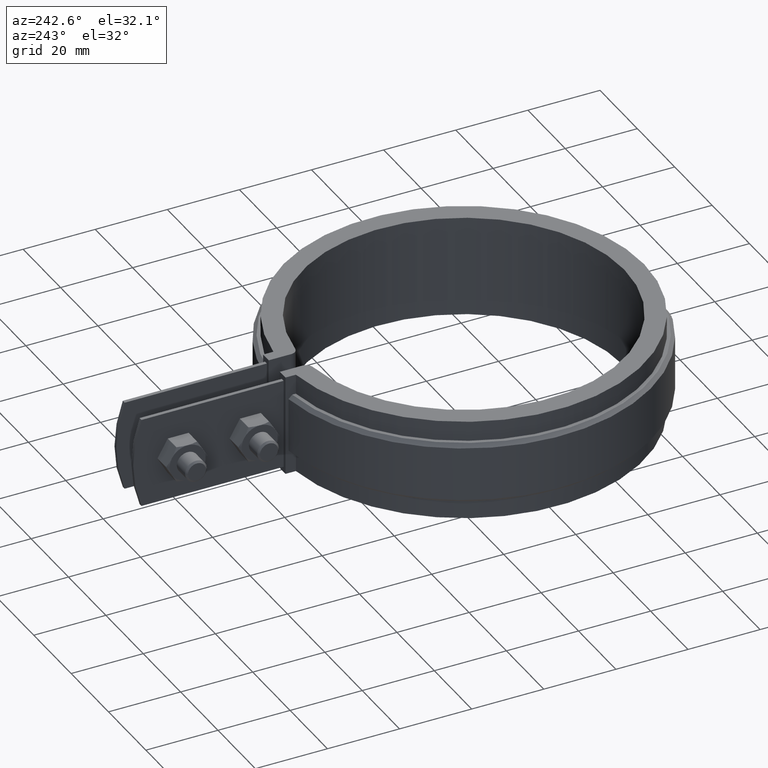
[diagram: clean part render]
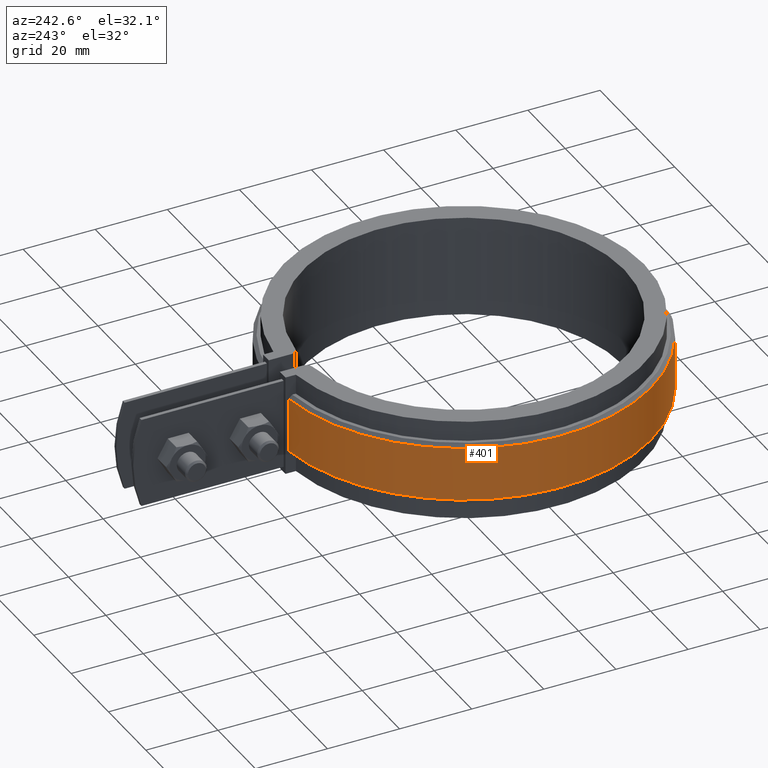
[diagram: same view with one face highlighted and labeled with its STEP entity id]
A machine part, auxiliary view. The second image highlights one B-rep face of the part: STEP entity #401.
In plain terms, the highlighted cylindrical surface (partial cylindrical patch) has radius 52.05 mm, axis along (0, 0, -1).
Its self-contained STEP definition (entity closure, byte-faithful):
#401 = ADVANCED_FACE( '', ( #696 ), #697, .T. );
#696 = FACE_OUTER_BOUND( '', #1668, .T. );
#697 = CYLINDRICAL_SURFACE( '', #1669, 52.0500000000000 );
#1668 = EDGE_LOOP( '', ( #3200, #3201, #3202, #3203 ) );
#1669 = AXIS2_PLACEMENT_3D( '', #3204, #3205, #3206 );
#3200 = ORIENTED_EDGE( '', *, *, #4318, .T. );
#3201 = ORIENTED_EDGE( '', *, *, #4319, .T. );
#3202 = ORIENTED_EDGE( '', *, *, #4308, .F. );
#3203 = ORIENTED_EDGE( '', *, *, #4320, .T. );
#3204 = CARTESIAN_POINT( '', ( 0.000000000000000, -1.38777878078145E-014, -8.50000000000000 ) );
#3205 = DIRECTION( '', ( 0.000000000000000, 0.000000000000000, -1.00000000000000 ) );
#3206 = DIRECTION( '', ( -0.0960614793467818, 0.995375402642494, 0.000000000000000 ) );
#4308 = EDGE_CURVE( '', #5018, #5020, #5021, .T. );
#4318 = EDGE_CURVE( '', #5035, #5036, #5037, .T. );
#4319 = EDGE_CURVE( '', #5036, #5020, #5038, .F. );
#4320 = EDGE_CURVE( '', #5018, #5035, #5039, .T. );
#5018 = VERTEX_POINT( '', #7686 );
#5020 = VERTEX_POINT( '', #7691 );
#5021 = LINE( '', #7692, #7693 );
#5035 = VERTEX_POINT( '', #7716 );
#5036 = VERTEX_POINT( '', #7717 );
#5037 = LINE( '', #7718, #7719 );
#5038 = CIRCLE( '', #7720, 52.0500000000000 );
#5039 = CIRCLE( '', #7721, 52.0500000000000 );
#7686 = CARTESIAN_POINT( '', ( -6.00000000000000, 51.7030221553828, -7.50000000000000 ) );
#7691 = CARTESIAN_POINT( '', ( -6.00000000000000, 51.7030221553828, 7.50000000000001 ) );
#7692 = CARTESIAN_POINT( '', ( -6.00000000000000, 51.7030221553828, -8.50000000000000 ) );
#7693 = VECTOR( '', #8587, 1000.00000000000 );
#7716 = CARTESIAN_POINT( '', ( -16.8700026854753, -49.2402834008097, -7.50000000000000 ) );
#7717 = CARTESIAN_POINT( '', ( -16.8700026854753, -49.2402834008097, 7.50000000000001 ) );
#7718 = CARTESIAN_POINT( '', ( -16.8700026854753, -49.2402834008097, -8.50000000000000 ) );
#7719 = VECTOR( '', #8600, 1000.00000000000 );
#7720 = AXIS2_PLACEMENT_3D( '', #8601, #8602, #8603 );
#7721 = AXIS2_PLACEMENT_3D( '', #8604, #8605, #8606 );
#8587 = DIRECTION( '', ( 0.000000000000000, 0.000000000000000, 1.00000000000000 ) );
#8600 = DIRECTION( '', ( 0.000000000000000, 0.000000000000000, 1.00000000000000 ) );
#8601 = CARTESIAN_POINT( '', ( 0.000000000000000, -1.38777878078145E-014, 7.50000000000000 ) );
#8602 = DIRECTION( '', ( 0.000000000000000, 0.000000000000000, 1.00000000000000 ) );
#8603 = DIRECTION( '', ( 1.00000000000000, 0.000000000000000, 0.000000000000000 ) );
#8604 = CARTESIAN_POINT( '', ( 0.000000000000000, -1.38777878078145E-014, -7.50000000000000 ) );
#8605 = DIRECTION( '', ( 0.000000000000000, 0.000000000000000, 1.00000000000000 ) );
#8606 = DIRECTION( '', ( 1.00000000000000, 0.000000000000000, 0.000000000000000 ) );